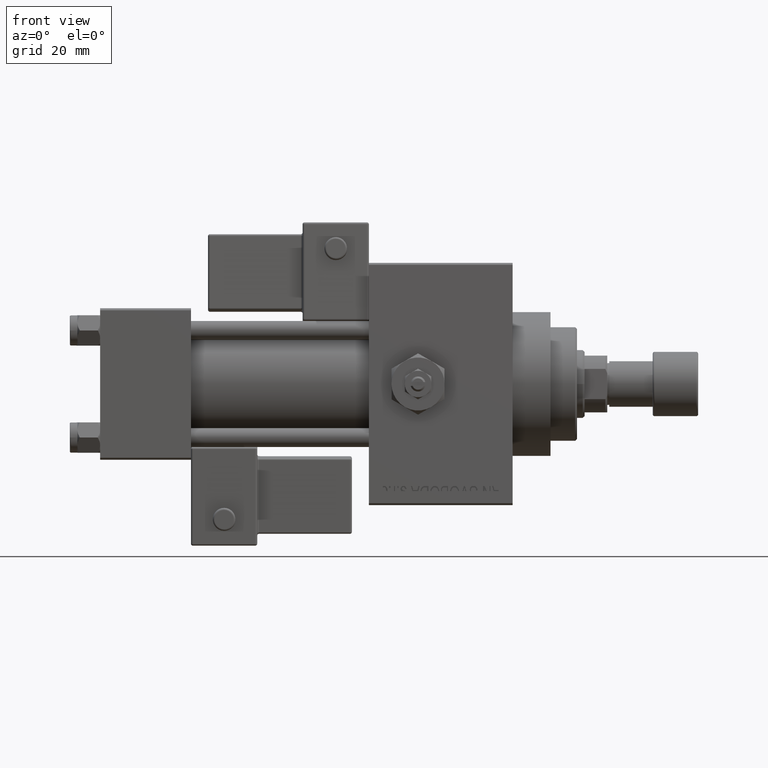
[diagram: clean part render]
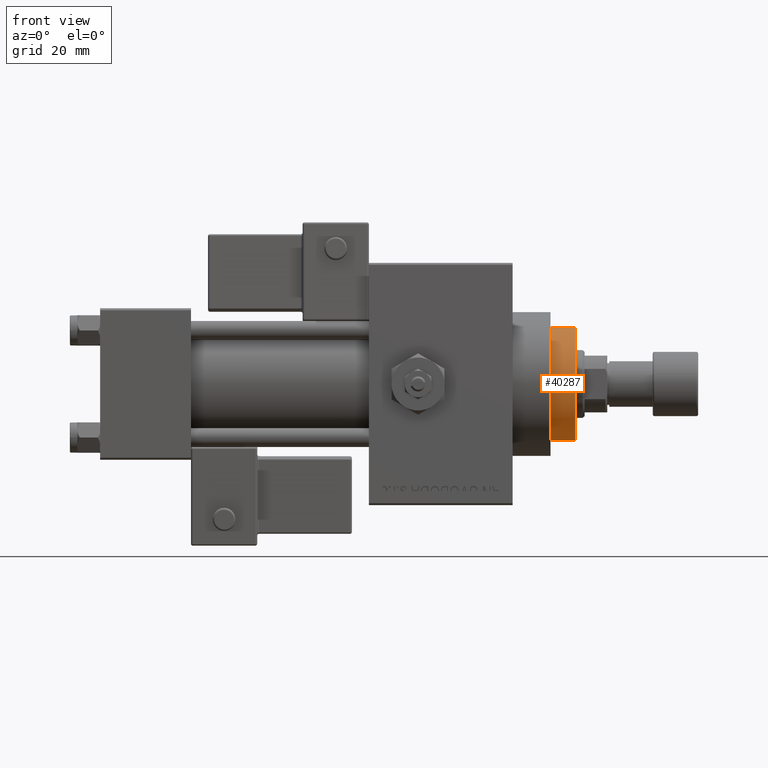
[diagram: same view with one face highlighted and labeled with its STEP entity id]
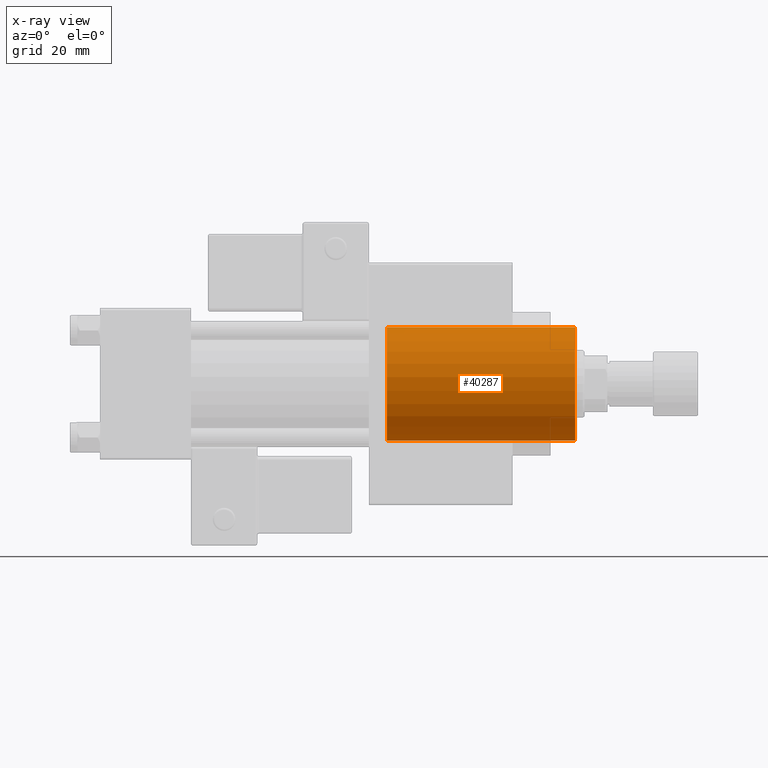
[diagram: x-ray of the same camera — body ghosted, the highlighted face saturated]
A machine part, front view. The second image highlights one B-rep face of the part: STEP entity #40287.
The next image is the same camera in x-ray: the body ghosted, the highlighted face saturated — about 0% of this face is hidden behind the body in this view.
In plain terms, the highlighted cylindrical surface (partial cylindrical patch) has radius 15 mm, axis along (-1, 0, 0).
Its self-contained STEP definition (entity closure, byte-faithful):
#835 = CARTESIAN_POINT ( 'NONE',  ( -15.00000000000000000, 0.000000000000000000, 0.000000000000000000 ) ) ;
#1419 = CARTESIAN_POINT ( 'NONE',  ( 15.00000000000000000, 1.836970198721029589E-15, 43.25999999999999801 ) ) ;
#2024 = CARTESIAN_POINT ( 'NONE',  ( -15.00000000000000000, 0.000000000000000000, 49.75999999999998380 ) ) ;
#2491 = EDGE_CURVE ( 'NONE', #36238, #31698, #16350, .T. ) ;
#2649 = AXIS2_PLACEMENT_3D ( 'NONE', #39373, #47442, #16196 ) ;
#4895 = DIRECTION ( 'NONE',  ( -0.000000000000000000, -0.000000000000000000, -1.000000000000000000 ) ) ;
#5504 = ORIENTED_EDGE ( 'NONE', *, *, #2491, .F. ) ;
#5857 = VERTEX_POINT ( 'NONE', #47511 ) ;
#6403 = CIRCLE ( 'NONE', #32977, 15.00000000000000000 ) ;
#7898 = VECTOR ( 'NONE', #4895, 1000.000000000000000 ) ;
#10113 = CIRCLE ( 'NONE', #2649, 15.00000000000000000 ) ;
#10251 = VERTEX_POINT ( 'NONE', #28230 ) ;
#13634 = LINE ( 'NONE', #1419, #30873 ) ;
#16196 = DIRECTION ( 'NONE',  ( 1.000000000000000000, 0.000000000000000000, 0.000000000000000000 ) ) ;
#16350 = LINE ( 'NONE', #20255, #7898 ) ;
#17419 = DIRECTION ( 'NONE',  ( 0.000000000000000000, 0.000000000000000000, -1.000000000000000000 ) ) ;
#17671 = DIRECTION ( 'NONE',  ( 1.000000000000000000, 0.000000000000000000, 0.000000000000000000 ) ) ;
#17979 = CYLINDRICAL_SURFACE ( 'NONE', #19482, 15.00000000000000000 ) ;
#19050 = EDGE_CURVE ( 'NONE', #5857, #10251, #13634, .T. ) ;
#19267 = EDGE_CURVE ( 'NONE', #10251, #31698, #10113, .T. ) ;
#19482 = AXIS2_PLACEMENT_3D ( 'NONE', #49745, #26559, #22401 ) ;
#20255 = CARTESIAN_POINT ( 'NONE',  ( -15.00000000000000000, 0.000000000000000000, 43.25999999999999801 ) ) ;
#22401 = DIRECTION ( 'NONE',  ( -1.000000000000000000, 0.000000000000000000, 0.000000000000000000 ) ) ;
#24968 = CARTESIAN_POINT ( 'NONE',  ( 0.000000000000000000, 0.000000000000000000, 49.75999999999998380 ) ) ;
#25031 = ORIENTED_EDGE ( 'NONE', *, *, #19050, .T. ) ;
#25802 = ORIENTED_EDGE ( 'NONE', *, *, #33484, .T. ) ;
#25969 = EDGE_LOOP ( 'NONE', ( #25802, #25031, #45525, #5504 ) ) ;
#26559 = DIRECTION ( 'NONE',  ( -0.000000000000000000, -0.000000000000000000, -1.000000000000000000 ) ) ;
#28230 = CARTESIAN_POINT ( 'NONE',  ( 15.00000000000000000, 1.836970198721029589E-15, 0.000000000000000000 ) ) ;
#30873 = VECTOR ( 'NONE', #45390, 1000.000000000000000 ) ;
#31698 = VERTEX_POINT ( 'NONE', #835 ) ;
#32977 = AXIS2_PLACEMENT_3D ( 'NONE', #24968, #17419, #17671 ) ;
#33484 = EDGE_CURVE ( 'NONE', #36238, #5857, #6403, .T. ) ;
#36238 = VERTEX_POINT ( 'NONE', #2024 ) ;
#39373 = CARTESIAN_POINT ( 'NONE',  ( 0.000000000000000000, 0.000000000000000000, 0.000000000000000000 ) ) ;
#40287 = ADVANCED_FACE ( 'NONE', ( #50516 ), #17979, .T. ) ;
#45390 = DIRECTION ( 'NONE',  ( -0.000000000000000000, -0.000000000000000000, -1.000000000000000000 ) ) ;
#45525 = ORIENTED_EDGE ( 'NONE', *, *, #19267, .T. ) ;
#47442 = DIRECTION ( 'NONE',  ( 0.000000000000000000, 0.000000000000000000, 1.000000000000000000 ) ) ;
#47511 = CARTESIAN_POINT ( 'NONE',  ( 15.00000000000000000, 1.836970198721029589E-15, 49.75999999999998380 ) ) ;
#49745 = CARTESIAN_POINT ( 'NONE',  ( 0.000000000000000000, 0.000000000000000000, 43.25999999999999801 ) ) ;
#50516 = FACE_OUTER_BOUND ( 'NONE', #25969, .T. ) ;